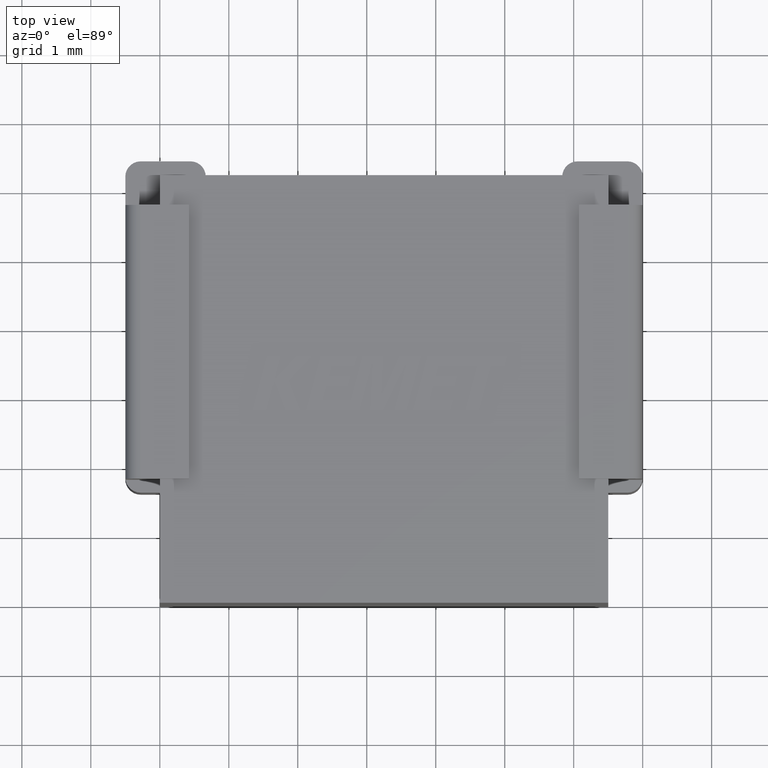
[diagram: clean part render]
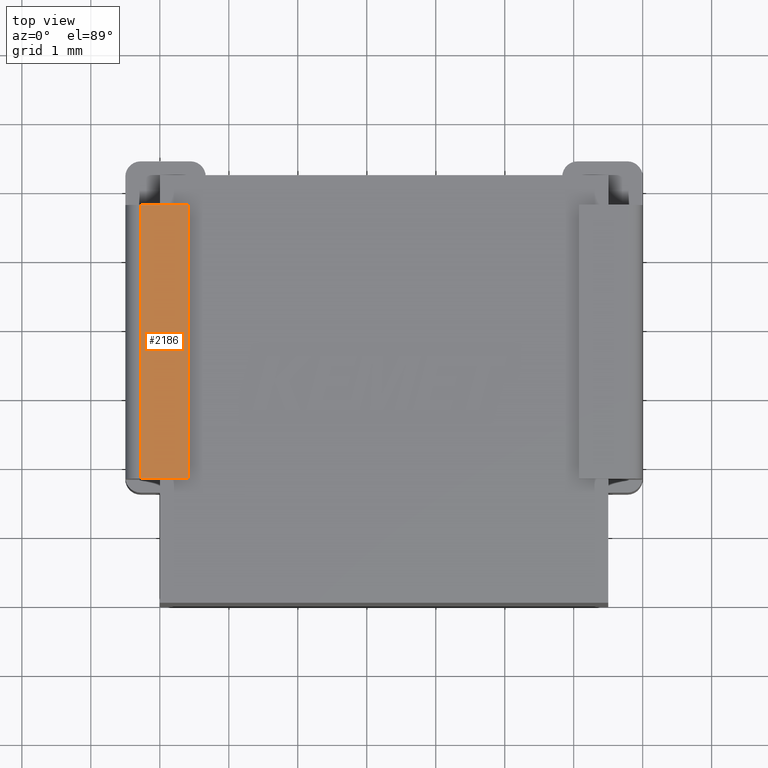
[diagram: same view with one face highlighted and labeled with its STEP entity id]
A machine part, top view. The second image highlights one B-rep face of the part: STEP entity #2186.
In plain terms, the highlighted planar face has unit normal (0, 0, 1).
Its self-contained STEP definition (entity closure, byte-faithful):
#123 = VECTOR ( 'NONE', #2880, 1000.000000000000000 ) ;
#183 = VERTEX_POINT ( 'NONE', #3674 ) ;
#214 = DIRECTION ( 'NONE',  ( 1.000000000000000000, 6.938893903907228378E-16, -1.029992063861229089E-16 ) ) ;
#225 = DIRECTION ( 'NONE',  ( 1.000000000000000000, 6.938893903907228378E-16, -1.029992063861229089E-16 ) ) ;
#266 = CARTESIAN_POINT ( 'NONE',  ( -0.5000000000000047740, 5.767326539126282015, 0.09448822278001654806 ) ) ;
#309 = VERTEX_POINT ( 'NONE', #731 ) ;
#512 = CARTESIAN_POINT ( 'NONE',  ( -0.2780000000000013571, 1.799326539126282709, 0.09448822278001652031 ) ) ;
#564 = VERTEX_POINT ( 'NONE', #512 ) ;
#731 = CARTESIAN_POINT ( 'NONE',  ( -0.2780000000000047988, 5.767326539126282903, 0.09448822278001652031 ) ) ;
#782 = VECTOR ( 'NONE', #225, 1000.000000000000000 ) ;
#964 = EDGE_CURVE ( 'NONE', #564, #309, #2307, .T. ) ;
#1328 = ORIENTED_EDGE ( 'NONE', *, *, #1517, .T. ) ;
#1331 = DIRECTION ( 'NONE',  ( 1.029992063861229089E-16, 7.147005652999506954E-32, 1.000000000000000000 ) ) ;
#1490 = VERTEX_POINT ( 'NONE', #3448 ) ;
#1517 = EDGE_CURVE ( 'NONE', #564, #183, #3825, .T. ) ;
#1597 = CARTESIAN_POINT ( 'NONE',  ( -0.5000000000000013323, 1.799326539126282709, 0.09448822278001654806 ) ) ;
#1636 = VECTOR ( 'NONE', #3820, 1000.000000000000000 ) ;
#1681 = LINE ( 'NONE', #266, #782 ) ;
#1982 = CARTESIAN_POINT ( 'NONE',  ( -0.2780000000000047988, 5.767326539126282903, 0.09448822278001652031 ) ) ;
#2186 = ADVANCED_FACE ( 'NONE', ( #3042 ), #4454, .T. ) ;
#2307 = LINE ( 'NONE', #1982, #1636 ) ;
#2347 = EDGE_CURVE ( 'NONE', #1490, #183, #2970, .T. ) ;
#2760 = DIRECTION ( 'NONE',  ( -1.000000000000000000, -6.938893903907228378E-16, 1.029992063861229089E-16 ) ) ;
#2880 = DIRECTION ( 'NONE',  ( 6.938893903907228378E-16, -1.000000000000000000, 0.000000000000000000 ) ) ;
#2970 = LINE ( 'NONE', #3275, #123 ) ;
#3042 = FACE_OUTER_BOUND ( 'NONE', #3483, .T. ) ;
#3197 = ORIENTED_EDGE ( 'NONE', *, *, #964, .F. ) ;
#3275 = CARTESIAN_POINT ( 'NONE',  ( 0.4210526315789426821, 5.767326539126282903, 0.09448822278001645092 ) ) ;
#3303 = EDGE_CURVE ( 'NONE', #309, #1490, #1681, .T. ) ;
#3448 = CARTESIAN_POINT ( 'NONE',  ( 0.4210526315789426821, 5.767326539126282903, 0.09448822278001645092 ) ) ;
#3483 = EDGE_LOOP ( 'NONE', ( #1328, #4350, #4167, #3197 ) ) ;
#3674 = CARTESIAN_POINT ( 'NONE',  ( 0.4210526315789461238, 1.799326539126283375, 0.09448822278001645092 ) ) ;
#3820 = DIRECTION ( 'NONE',  ( -6.938893903907228378E-16, 1.000000000000000000, -0.000000000000000000 ) ) ;
#3825 = LINE ( 'NONE', #1597, #3904 ) ;
#3902 = CARTESIAN_POINT ( 'NONE',  ( -0.5000000000000047740, 5.767326539126282015, 0.09448822278001654806 ) ) ;
#3904 = VECTOR ( 'NONE', #214, 1000.000000000000000 ) ;
#4167 = ORIENTED_EDGE ( 'NONE', *, *, #3303, .F. ) ;
#4350 = ORIENTED_EDGE ( 'NONE', *, *, #2347, .F. ) ;
#4454 = PLANE ( 'NONE',  #4577 ) ;
#4577 = AXIS2_PLACEMENT_3D ( 'NONE', #3902, #1331, #2760 ) ;